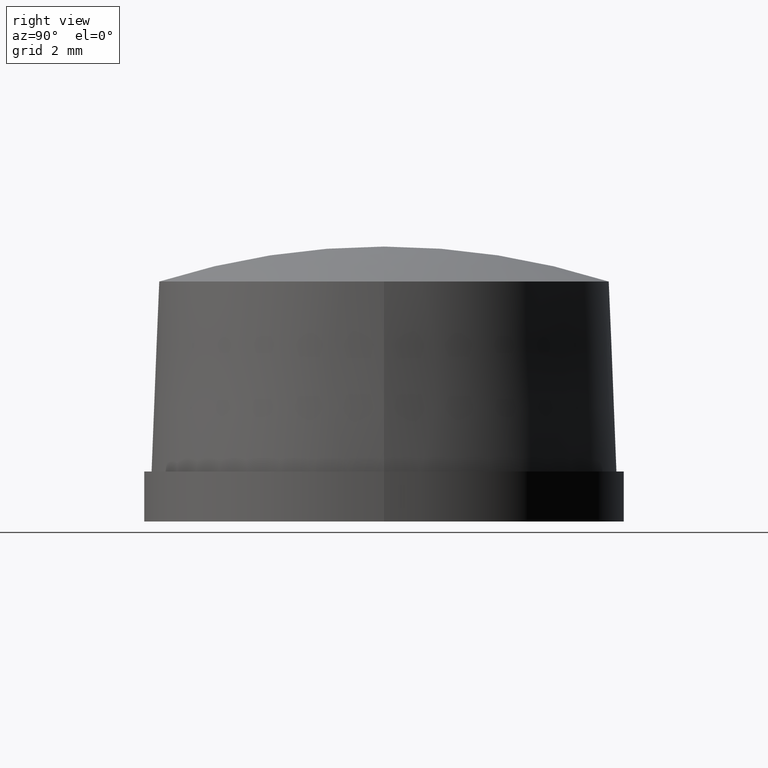
[diagram: clean part render]
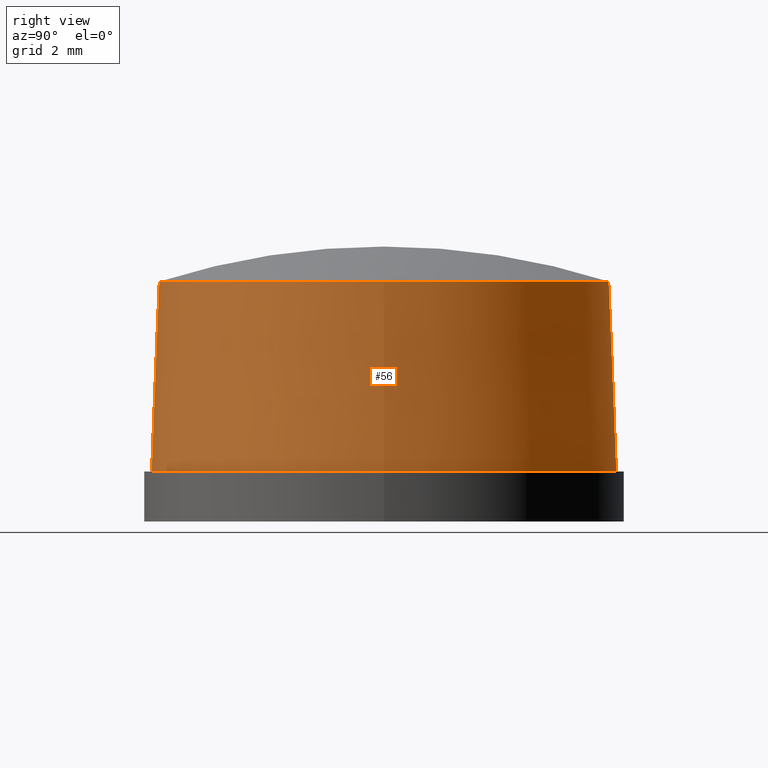
[diagram: same view with one face highlighted and labeled with its STEP entity id]
A machine part, right view. The second image highlights one B-rep face of the part: STEP entity #56.
In plain terms, the highlighted conical surface has half-angle 2.261 deg.
Its self-contained STEP definition (entity closure, byte-faithful):
#19=FACE_BOUND('',#28,.T.);
#22=FACE_OUTER_BOUND('',#27,.T.);
#27=EDGE_LOOP('',(#47));
#28=EDGE_LOOP('',(#48));
#35=CIRCLE('',#64,4.5);
#36=CIRCLE('',#65,4.65);
#39=VERTEX_POINT('',#94);
#40=VERTEX_POINT('',#96);
#43=EDGE_CURVE('',#39,#39,#35,.T.);
#44=EDGE_CURVE('',#40,#40,#36,.T.);
#47=ORIENTED_EDGE('',*,*,#43,.F.);
#48=ORIENTED_EDGE('',*,*,#44,.T.);
#55=CONICAL_SURFACE('',#63,4.575,2.26050191114129);
#56=ADVANCED_FACE('',(#22,#19),#55,.T.);
#63=AXIS2_PLACEMENT_3D('',#93,#74,#75);
#64=AXIS2_PLACEMENT_3D('',#95,#76,#77);
#65=AXIS2_PLACEMENT_3D('',#97,#78,#79);
#74=DIRECTION('center_axis',(-4.84756024662494E-17,0.,-1.));
#75=DIRECTION('ref_axis',(1.,0.,-5.96870416983002E-17));
#76=DIRECTION('center_axis',(4.84756024662494E-17,0.,1.));
#77=DIRECTION('ref_axis',(1.,0.,0.));
#78=DIRECTION('center_axis',(4.84756024662494E-17,0.,1.));
#79=DIRECTION('ref_axis',(1.,0.,-5.96870416983002E-17));
#93=CARTESIAN_POINT('Origin',(1.40579247152123E-16,0.,1.9));
#94=CARTESIAN_POINT('',(4.5,0.,3.8));
#95=CARTESIAN_POINT('Origin',(2.32682891837997E-16,0.,3.8));
#96=CARTESIAN_POINT('',(4.65,0.,0.));
#97=CARTESIAN_POINT('Origin',(4.84756024662494E-17,0.,2.2541155146806E-16));